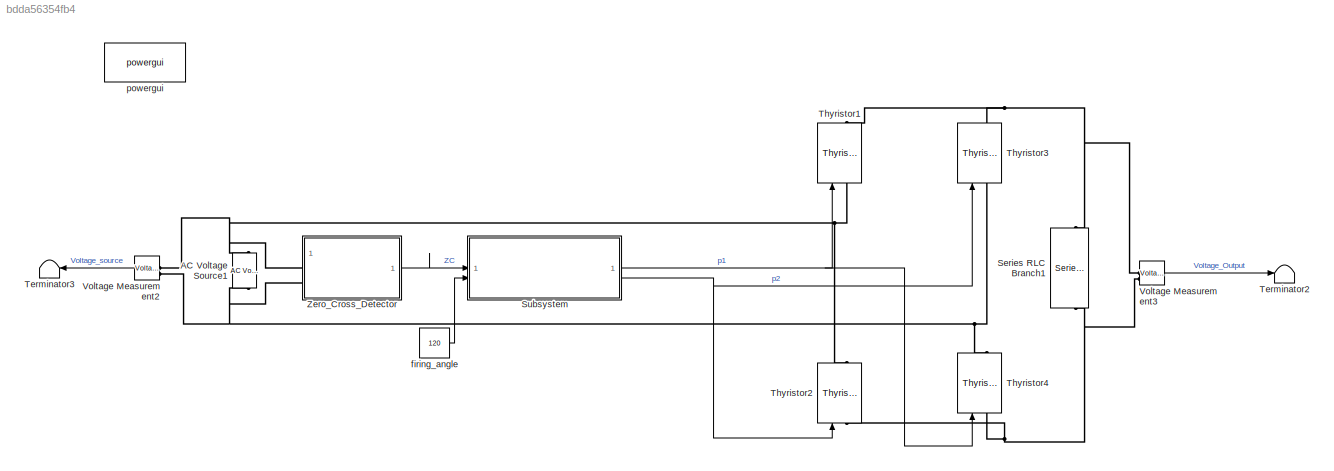
MODEL slx_bdda56354fb4
KIND model
CONFIG AbsTol = auto
CONFIG EnableMultiTasking = off
CONFIG FixedStep = auto
CONFIG MaxStep = 1e-6
CONFIG MinStep = auto
CONFIG RelTol = 1e-3
CONFIG SampleTimeConstraint = Unconstrained
CONFIG SolverName = VariableStepAuto
CONFIG StartTime = 0.0
CONFIG StopTime = 0.08
BLOCK [Reference] AC Voltage Source1  REF=spsACVoltageSourceLib/AC Voltage Source
  LibrarySourceBlock = sps_lib/Sources/AC Voltage Source
  SourceBlock = spsACVoltageSourceLib/AC Voltage Source
  SourceType = AC Voltage Source
BLOCK [Reference] Series RLC Branch1  REF=spsSeriesRLCBranchLib/Series RLC Branch
  LibrarySourceBlock = sps_lib/Passives/Series RLC Branch
  NameLocation = left
  SourceBlock = spsSeriesRLCBranchLib/Series RLC Branch
  SourceType = Series RLC Branch
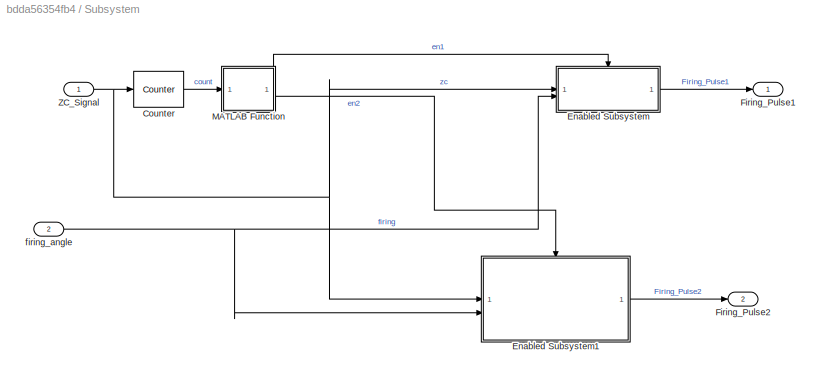
BLOCK [SubSystem] Subsystem
BLOCK [Reference] Subsystem/Counter  REF=dspswit3/Counter
  SourceBlock = dspswit3/Counter
  SourceType = Counter
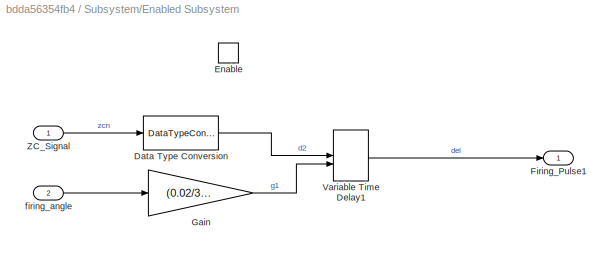
BLOCK [SubSystem] Subsystem/Enabled Subsystem
  TreatAsAtomicUnit = on
BLOCK [DataTypeConversion] Subsystem/Enabled Subsystem/Data Type Conversion
  OutDataTypeStr = double
  RndMeth = Floor
  SaturateOnIntegerOverflow = off
BLOCK [EnablePort] Subsystem/Enabled Subsystem/Enable
BLOCK [Outport] Subsystem/Enabled Subsystem/Firing_Pulse1
BLOCK [Gain] Subsystem/Enabled Subsystem/Gain
  Gain = (0.02/360)
BLOCK [VariableTransportDelay] Subsystem/Enabled Subsystem/Variable Time Delay1
  MaximumDelay = 10
  ZeroDelay = on
BLOCK [Inport] Subsystem/Enabled Subsystem/ZC_Signal
BLOCK [Inport] Subsystem/Enabled Subsystem/firing_angle
  Port = 2
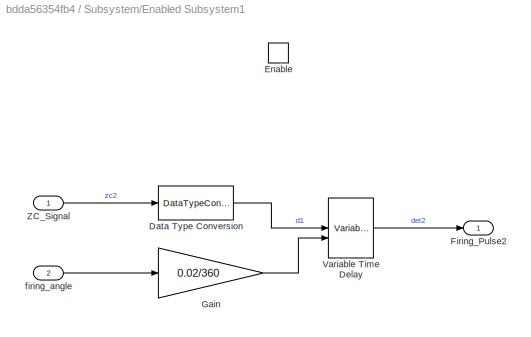
BLOCK [SubSystem] Subsystem/Enabled Subsystem1
  TreatAsAtomicUnit = on
BLOCK [DataTypeConversion] Subsystem/Enabled Subsystem1/Data Type Conversion
  OutDataTypeStr = double
  RndMeth = Floor
  SaturateOnIntegerOverflow = off
BLOCK [EnablePort] Subsystem/Enabled Subsystem1/Enable
BLOCK [Outport] Subsystem/Enabled Subsystem1/Firing_Pulse2
BLOCK [Gain] Subsystem/Enabled Subsystem1/Gain
  Gain = 0.02/360
BLOCK [VariableTransportDelay] Subsystem/Enabled Subsystem1/Variable Time Delay
  MaximumDelay = 10
  ZeroDelay = on
BLOCK [Inport] Subsystem/Enabled Subsystem1/ZC_Signal
BLOCK [Inport] Subsystem/Enabled Subsystem1/firing_angle
  Port = 2
BLOCK [Outport] Subsystem/Firing_Pulse1
BLOCK [Outport] Subsystem/Firing_Pulse2
  Port = 2
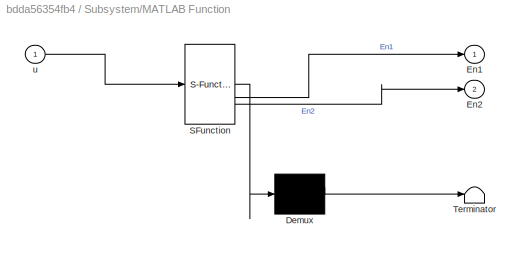
BLOCK [SubSystem] Subsystem/MATLAB Function
  ErrorFcn = Stateflow.Translate.translate
  LibrarySourceBlock = simulink/User-Defined\nFunctions/MATLAB Function
  PermitHierarchicalResolution = ExplicitOnly
  SFBlockType = MATLAB Function
  TreatAsAtomicUnit = on
BLOCK [Demux] Subsystem/MATLAB Function/ Demux 
  Outputs = 1
BLOCK [S-Function] Subsystem/MATLAB Function/ SFunction 
  EnableBusSupport = on
  FunctionName = sf_sfun
  PortCounts = [1 3]
  SFcnIsStateOwnerBlock = off
  SFunctionDeploymentMode = off
  Tag = Stateflow S-Function 2
BLOCK [Terminator] Subsystem/MATLAB Function/ Terminator 
BLOCK [Outport] Subsystem/MATLAB Function/En1
BLOCK [Outport] Subsystem/MATLAB Function/En2
  Port = 2
BLOCK [Inport] Subsystem/MATLAB Function/u
BLOCK [Inport] Subsystem/ZC_Signal
BLOCK [Inport] Subsystem/firing_angle
  Port = 2
BLOCK [Terminator] Terminator2
BLOCK [Terminator] Terminator3
  NameLocation = top
BLOCK [Reference] Thyristor1  REF=spsThyristorLib/Thyristor
  LibrarySourceBlock = sps_lib/Power Electronics/Thyristor
  NameLocation = right
  SourceBlock = spsThyristorLib/Thyristor
  SourceType = Thyristor
BLOCK [Reference] Thyristor2  REF=spsThyristorLib/Thyristor
  LibrarySourceBlock = sps_lib/Power Electronics/Thyristor
  NameLocation = right
  SourceBlock = spsThyristorLib/Thyristor
  SourceType = Thyristor
BLOCK [Reference] Thyristor3  REF=spsThyristorLib/Thyristor
  LibrarySourceBlock = sps_lib/Power Electronics/Thyristor
  NameLocation = right
  SourceBlock = spsThyristorLib/Thyristor
  SourceType = Thyristor
BLOCK [Reference] Thyristor4  REF=spsThyristorLib/Thyristor
  LibrarySourceBlock = sps_lib/Power Electronics/Thyristor
  NameLocation = right
  SourceBlock = spsThyristorLib/Thyristor
  SourceType = Thyristor
BLOCK [Reference] Voltage Measurement2  REF=spsVoltageMeasurementLib/Voltage Measurement
  LibrarySourceBlock = sps_lib/Sensors and Measurements/Voltage Measurement
  SourceBlock = spsVoltageMeasurementLib/Voltage Measurement
  SourceType = Voltage Measurement
  UserDataPersistent = on
BLOCK [Reference] Voltage Measurement3  REF=spsVoltageMeasurementLib/Voltage Measurement
  LibrarySourceBlock = sps_lib/Sensors and Measurements/Voltage Measurement
  SourceBlock = spsVoltageMeasurementLib/Voltage Measurement
  SourceType = Voltage Measurement
  UserDataPersistent = on
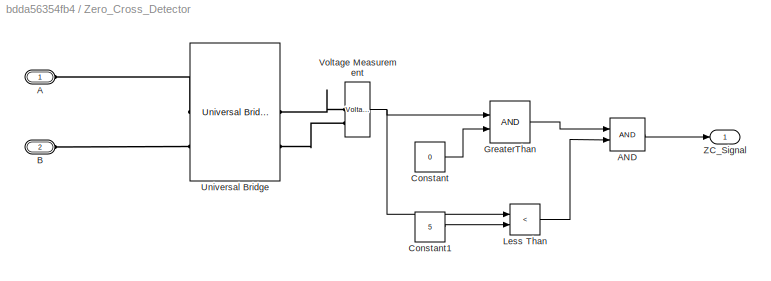
BLOCK [SubSystem] Zero_Cross_Detector
BLOCK [PMIOPort] Zero_Cross_Detector/A
  Side = Left
BLOCK [Logic] Zero_Cross_Detector/AND
  AllPortsSameDT = off
  OutDataTypeStr = boolean
BLOCK [PMIOPort] Zero_Cross_Detector/B
  Port = 2
  Side = Left
BLOCK [Constant] Zero_Cross_Detector/Constant
  Value = 0
BLOCK [Constant] Zero_Cross_Detector/Constant1
  Value = 5
BLOCK [RelationalOperator] Zero_Cross_Detector/GreaterThan
  InputSameDT = off
  OutDataTypeStr = boolean
  RndMeth = Simplest
BLOCK [RelationalOperator] Zero_Cross_Detector/Less Than
  InputSameDT = off
  Operator = <
  OutDataTypeStr = boolean
  RndMeth = Simplest
BLOCK [Reference] Zero_Cross_Detector/Universal Bridge  REF=spsUniversalBridgeLib/Universal Bridge
  LibrarySourceBlock = sps_lib/Power Electronics/Universal Bridge
  SourceBlock = spsUniversalBridgeLib/Universal Bridge
  SourceType = Universal Bridge
BLOCK [Reference] Zero_Cross_Detector/Voltage Measurement  REF=spsVoltageMeasurementLib/Voltage Measurement
  LibrarySourceBlock = sps_lib/Sensors and Measurements/Voltage Measurement
  SourceBlock = spsVoltageMeasurementLib/Voltage Measurement
  SourceType = Voltage Measurement
  UserDataPersistent = on
BLOCK [Outport] Zero_Cross_Detector/ZC_Signal
BLOCK [Constant] firing_angle
  Value = 120
BLOCK [Reference] powergui  REF=sps_lib/powergui
  Priority = 1
  SourceBlock = sps_lib/powergui
  SourceType = PSB option menu block
LINE Subsystem/Counter:1 -> Subsystem/MATLAB Function:1
LINE Subsystem/Enabled Subsystem/Data Type Conversion:1 -> Subsystem/Enabled Subsystem/Variable Time Delay1:1
LINE Subsystem/Enabled Subsystem/Gain:1 -> Subsystem/Enabled Subsystem/Variable Time Delay1:2
LINE Subsystem/Enabled Subsystem/Variable Time Delay1:1 -> Subsystem/Enabled Subsystem/Firing_Pulse1:1
LINE Subsystem/Enabled Subsystem/ZC_Signal:1 -> Subsystem/Enabled Subsystem/Data Type Conversion:1
LINE Subsystem/Enabled Subsystem/firing_angle:1 -> Subsystem/Enabled Subsystem/Gain:1
LINE Subsystem/Enabled Subsystem1/Data Type Conversion:1 -> Subsystem/Enabled Subsystem1/Variable Time Delay:1
LINE Subsystem/Enabled Subsystem1/Gain:1 -> Subsystem/Enabled Subsystem1/Variable Time Delay:2
LINE Subsystem/Enabled Subsystem1/Variable Time Delay:1 -> Subsystem/Enabled Subsystem1/Firing_Pulse2:1
LINE Subsystem/Enabled Subsystem1/ZC_Signal:1 -> Subsystem/Enabled Subsystem1/Data Type Conversion:1
LINE Subsystem/Enabled Subsystem1/firing_angle:1 -> Subsystem/Enabled Subsystem1/Gain:1
LINE Subsystem/Enabled Subsystem1:1 -> Subsystem/Firing_Pulse2:1
LINE Subsystem/Enabled Subsystem:1 -> Subsystem/Firing_Pulse1:1
LINE Subsystem/MATLAB Function:1 -> Subsystem/Enabled Subsystem:enable
LINE Subsystem/MATLAB Function:2 -> Subsystem/Enabled Subsystem1:enable
NET Subsystem/ZC_Signal:1 -> Subsystem/Counter:1, Subsystem/Enabled Subsystem1:1, Subsystem/Enabled Subsystem:1
NET Subsystem/firing_angle:1 -> Subsystem/Enabled Subsystem1:2, Subsystem/Enabled Subsystem:2
NET Subsystem:1 -> Thyristor1:1, Thyristor4:1
NET Subsystem:2 -> Thyristor2:1, Thyristor3:1
LINE Voltage Measurement2:1 -> Terminator3:1
LINE Voltage Measurement3:1 -> Terminator2:1
LINE Zero_Cross_Detector/AND:1 -> Zero_Cross_Detector/ZC_Signal:1
LINE Zero_Cross_Detector/Constant1:1 -> Zero_Cross_Detector/Less Than:2
LINE Zero_Cross_Detector/Constant:1 -> Zero_Cross_Detector/GreaterThan:2
LINE Zero_Cross_Detector/GreaterThan:1 -> Zero_Cross_Detector/AND:1
LINE Zero_Cross_Detector/Less Than:1 -> Zero_Cross_Detector/AND:2
NET Zero_Cross_Detector/Voltage Measurement:1 -> Zero_Cross_Detector/GreaterThan:1, Zero_Cross_Detector/Less Than:1
LINE Zero_Cross_Detector:1 -> Subsystem:1
LINE firing_angle:1 -> Subsystem:2
PNET net1: AC Voltage Source1:LConn1 -- Thyristor3:LConn1 -- Thyristor4:RConn1 -- Voltage Measurement2:LConn2 -- Zero_Cross_Detector:LConn2
PNET net2: AC Voltage Source1:RConn1 -- Thyristor1:LConn1 -- Thyristor2:RConn1 -- Voltage Measurement2:LConn1 -- Zero_Cross_Detector:LConn1
PNET net3: Series RLC Branch1:LConn1 -- Thyristor1:RConn1 -- Thyristor3:RConn1 -- Voltage Measurement3:LConn1
PNET net4: Series RLC Branch1:RConn1 -- Thyristor2:LConn1 -- Thyristor4:LConn1 -- Voltage Measurement3:LConn2
PLINE Zero_Cross_Detector/A:RConn1 -- Zero_Cross_Detector/Universal Bridge:LConn1
PLINE Zero_Cross_Detector/B:RConn1 -- Zero_Cross_Detector/Universal Bridge:LConn2
PLINE Zero_Cross_Detector/Universal Bridge:RConn1 -- Zero_Cross_Detector/Voltage Measurement:LConn1
PLINE Zero_Cross_Detector/Universal Bridge:RConn2 -- Zero_Cross_Detector/Voltage Measurement:LConn2
note: NET lines group one-source signal fan-out (src -> all destinations, sorted); 1:1 wires keep LINE; PNET lines group multi-terminal physical nets as a canonical sorted terminal list (undirected conserving connections); 2-terminal nets keep the pairwise PLINE form
CHART Subsystem/MATLAB Function states=1 transitions=1
  STATE_LABEL 'eML_blk_kernel()'
  STATE_LABEL 'SCRIPT:\nfunction[En1, En2] = fcn(u)\nEn1=0;\nEn2=0;\nif mod(u,2) == 0\n    En1=1;\n    En2=0;\nelseif mod(u,2) == 1\n    En1=0;\n    En2=1;\nend\n'
CHART  states=0 transitions=0
